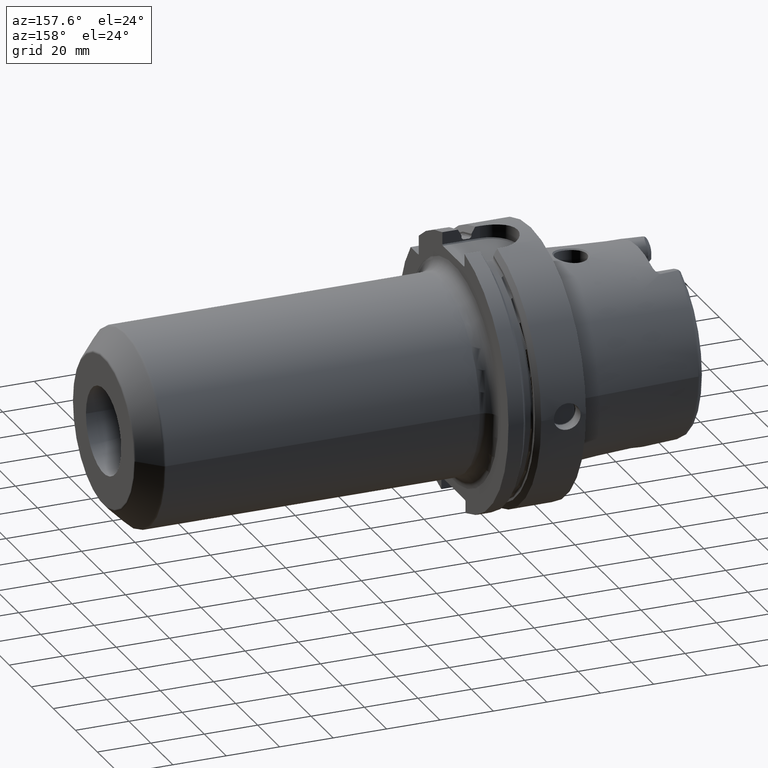
[diagram: clean part render]
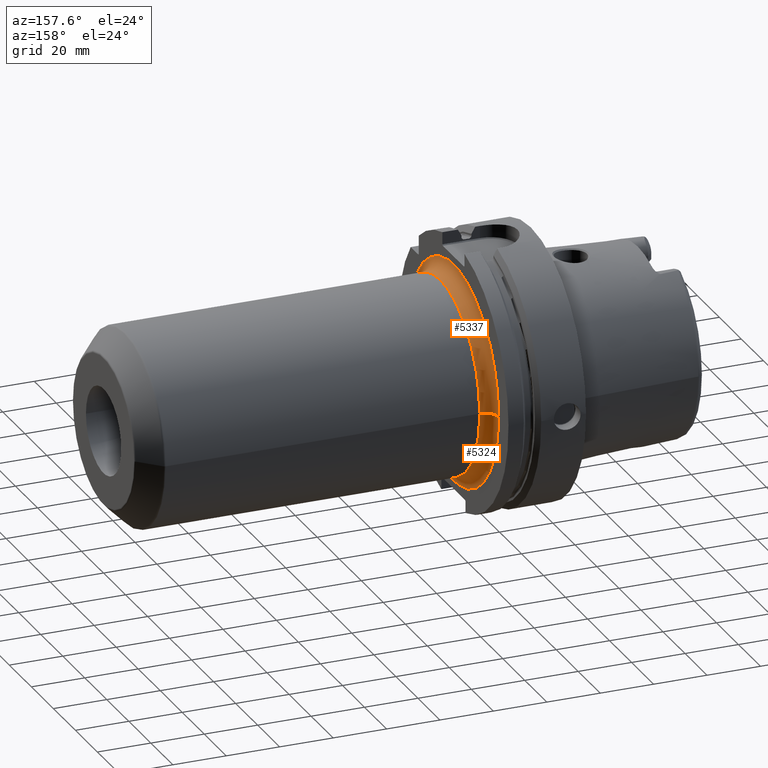
[diagram: same view with one multi-face feature highlighted, each face labeled with its STEP entity id]
A machine part, auxiliary view. The highlighted faces form ONE feature: a constant-radius fillet chain: 2 tangent blend faces with common blend radius 5 mm. The faces share edges in the B-rep.
Their STEP definitions:
[1] entity #5337 (Torus):
#1096=CARTESIAN_POINT('',(2.9E1,0.E0,0.E0));
#1097=DIRECTION('',(1.E0,0.E0,0.E0));
#1098=DIRECTION('',(0.E0,1.E0,0.E0));
#1099=AXIS2_PLACEMENT_3D('',#1096,#1097,#1098);
#1810=CARTESIAN_POINT('',(3.4E1,-4.1E1,0.E0));
#1811=DIRECTION('',(0.E0,0.E0,-1.E0));
#1812=DIRECTION('',(-1.E0,0.E0,0.E0));
#1813=AXIS2_PLACEMENT_3D('',#1810,#1811,#1812);
#1815=CARTESIAN_POINT('',(3.4E1,4.1E1,-1.255939796607E-14));
#1816=DIRECTION('',(0.E0,0.E0,1.E0));
#1817=DIRECTION('',(-1.E0,0.E0,0.E0));
#1818=AXIS2_PLACEMENT_3D('',#1815,#1816,#1817);
#1854=CARTESIAN_POINT('',(3.4E1,0.E0,0.E0));
#1855=DIRECTION('',(1.E0,0.E0,0.E0));
#1856=DIRECTION('',(0.E0,1.E0,0.E0));
#1857=AXIS2_PLACEMENT_3D('',#1854,#1855,#1856);
#3453=CARTESIAN_POINT('',(2.9E1,-4.1E1,-1.004210375301E-14));
#3454=CARTESIAN_POINT('',(2.9E1,4.1E1,0.E0));
#3455=VERTEX_POINT('',#3453);
#3456=VERTEX_POINT('',#3454);
#3457=CARTESIAN_POINT('',(3.4E1,-3.6E1,0.E0));
#3458=CARTESIAN_POINT('',(3.4E1,3.6E1,0.E0));
#3459=VERTEX_POINT('',#3457);
#3460=VERTEX_POINT('',#3458);
#5325=CARTESIAN_POINT('',(3.4E1,0.E0,0.E0));
#5326=DIRECTION('',(1.E0,0.E0,0.E0));
#5327=DIRECTION('',(0.E0,9.999977194648E-1,-2.135665043178E-3));
#5328=AXIS2_PLACEMENT_3D('',#5325,#5326,#5327);
#5329=TOROIDAL_SURFACE('',#5328,4.1E1,5.E0);
#5330=ORIENTED_EDGE('',*,*,#4592,.F.);
#5331=ORIENTED_EDGE('',*,*,#5320,.T.);
#5333=ORIENTED_EDGE('',*,*,#5332,.T.);
#5334=ORIENTED_EDGE('',*,*,#5316,.F.);
#5335=EDGE_LOOP('',(#5330,#5331,#5333,#5334));
#5336=FACE_OUTER_BOUND('',#5335,.F.);
#5337=ADVANCED_FACE('',(#5336),#5329,.F.);
#1100=CIRCLE('',#1099,4.1E1);
#1814=CIRCLE('',#1813,5.E0);
#1819=CIRCLE('',#1818,5.E0);
#1858=CIRCLE('',#1857,3.6E1);
#4592=EDGE_CURVE('',#3456,#3455,#1100,.T.);
#5316=EDGE_CURVE('',#3455,#3459,#1814,.T.);
#5320=EDGE_CURVE('',#3456,#3460,#1819,.T.);
#5332=EDGE_CURVE('',#3460,#3459,#1858,.T.);
[2] entity #5324 (Torus):
#1091=CARTESIAN_POINT('',(2.9E1,0.E0,0.E0));
#1092=DIRECTION('',(1.E0,0.E0,0.E0));
#1093=DIRECTION('',(0.E0,-1.E0,0.E0));
#1094=AXIS2_PLACEMENT_3D('',#1091,#1092,#1093);
#1810=CARTESIAN_POINT('',(3.4E1,-4.1E1,0.E0));
#1811=DIRECTION('',(0.E0,0.E0,-1.E0));
#1812=DIRECTION('',(-1.E0,0.E0,0.E0));
#1813=AXIS2_PLACEMENT_3D('',#1810,#1811,#1812);
#1815=CARTESIAN_POINT('',(3.4E1,4.1E1,-1.255939796607E-14));
#1816=DIRECTION('',(0.E0,0.E0,1.E0));
#1817=DIRECTION('',(-1.E0,0.E0,0.E0));
#1818=AXIS2_PLACEMENT_3D('',#1815,#1816,#1817);
#1991=CARTESIAN_POINT('',(3.4E1,0.E0,0.E0));
#1992=DIRECTION('',(1.E0,0.E0,0.E0));
#1993=DIRECTION('',(0.E0,-1.E0,0.E0));
#1994=AXIS2_PLACEMENT_3D('',#1991,#1992,#1993);
#3453=CARTESIAN_POINT('',(2.9E1,-4.1E1,-1.004210375301E-14));
#3454=CARTESIAN_POINT('',(2.9E1,4.1E1,0.E0));
#3455=VERTEX_POINT('',#3453);
#3456=VERTEX_POINT('',#3454);
#3457=CARTESIAN_POINT('',(3.4E1,-3.6E1,0.E0));
#3458=CARTESIAN_POINT('',(3.4E1,3.6E1,0.E0));
#3459=VERTEX_POINT('',#3457);
#3460=VERTEX_POINT('',#3458);
#5310=CARTESIAN_POINT('',(3.4E1,0.E0,0.E0));
#5311=DIRECTION('',(1.E0,0.E0,0.E0));
#5312=DIRECTION('',(0.E0,-9.999977194648E-1,2.135665043179E-3));
#5313=AXIS2_PLACEMENT_3D('',#5310,#5311,#5312);
#5314=TOROIDAL_SURFACE('',#5313,4.1E1,5.E0);
#5315=ORIENTED_EDGE('',*,*,#4590,.F.);
#5317=ORIENTED_EDGE('',*,*,#5316,.T.);
#5319=ORIENTED_EDGE('',*,*,#5318,.T.);
#5321=ORIENTED_EDGE('',*,*,#5320,.F.);
#5322=EDGE_LOOP('',(#5315,#5317,#5319,#5321));
#5323=FACE_OUTER_BOUND('',#5322,.F.);
#5324=ADVANCED_FACE('',(#5323),#5314,.F.);
#1095=CIRCLE('',#1094,4.1E1);
#1814=CIRCLE('',#1813,5.E0);
#1819=CIRCLE('',#1818,5.E0);
#1995=CIRCLE('',#1994,3.6E1);
#4590=EDGE_CURVE('',#3455,#3456,#1095,.T.);
#5316=EDGE_CURVE('',#3455,#3459,#1814,.T.);
#5318=EDGE_CURVE('',#3459,#3460,#1995,.T.);
#5320=EDGE_CURVE('',#3456,#3460,#1819,.T.);